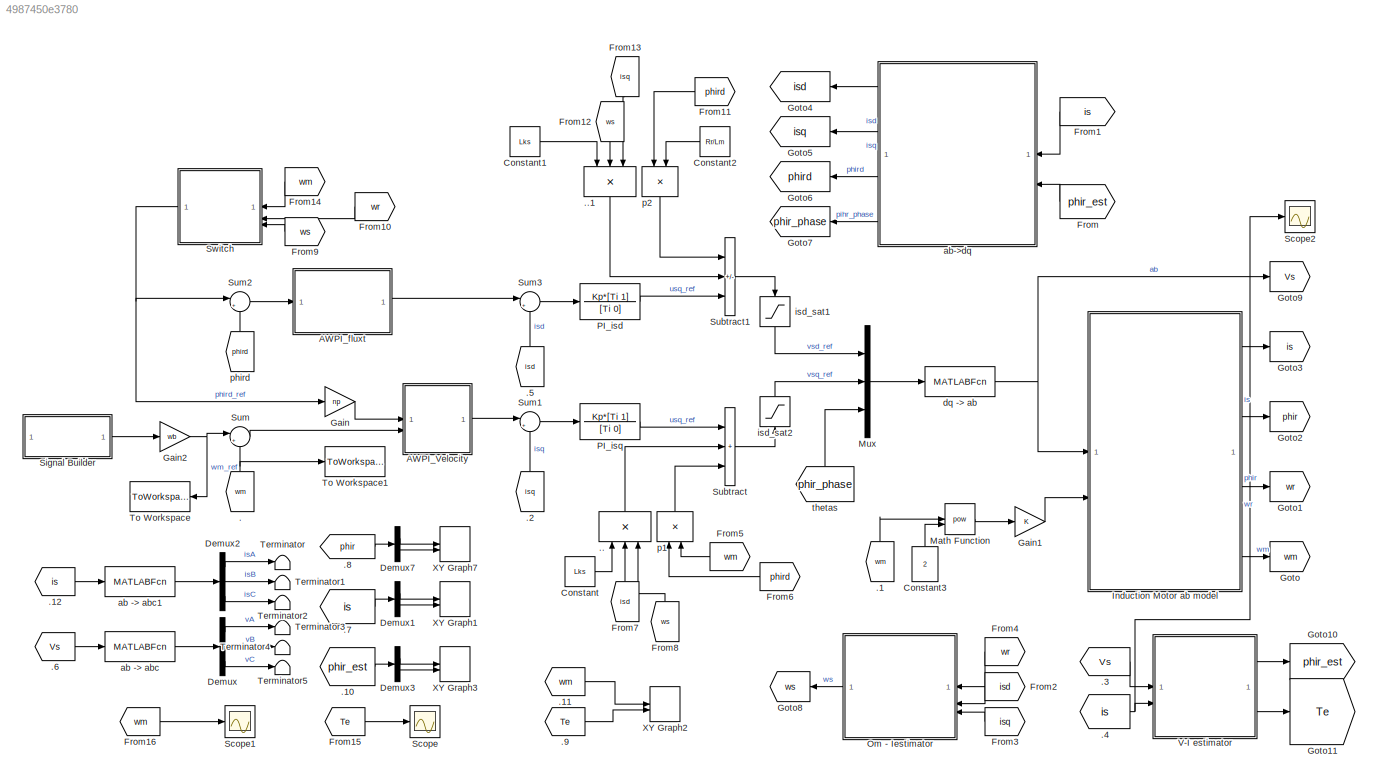
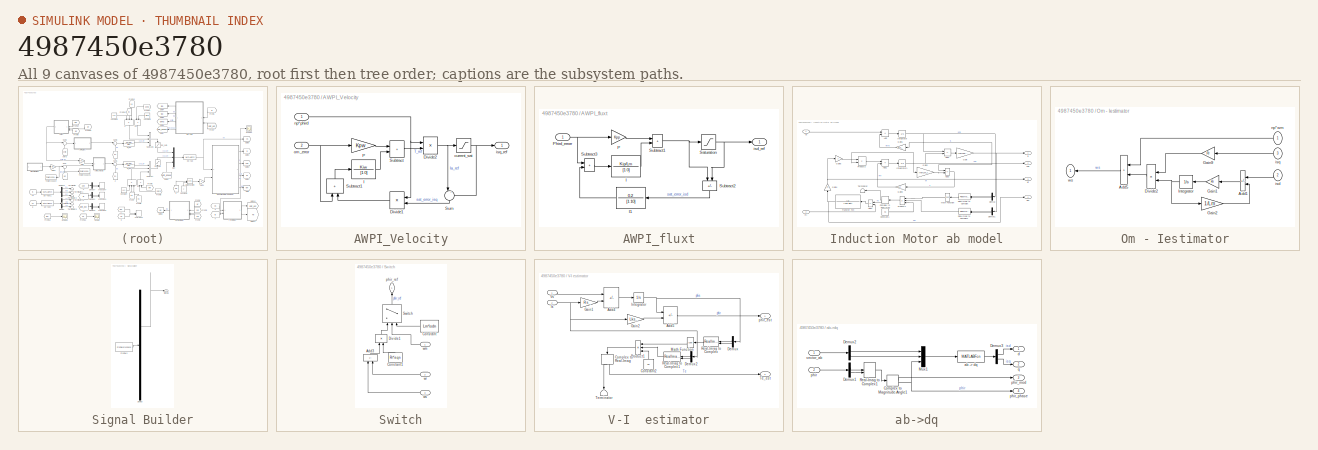
[diagram: thumbnail index - all 9 canvases of the model, root first then tree order]
MODEL slx_4987450e3780
KIND model
CONFIG AbsTol = auto
CONFIG EnableMultiTasking = off
CONFIG FixedStep = auto
CONFIG MaxStep = auto
CONFIG MinStep = auto
CONFIG RelTol = 1e-3
CONFIG SampleTimeConstraint = Unconstrained
CONFIG SolverName = VariableStepAuto
CONFIG StartTime = 0.0
CONFIG StopTime = 55
BLOCK [From] .
  GotoTag = wm
  NameLocation = right
BLOCK [Product] ..
  Inputs = ***
  NameLocation = right
BLOCK [Product] ..1
  Inputs = ***
  NameLocation = left
BLOCK [From] .1
  GotoTag = wm
  NameLocation = right
BLOCK [From] .10
  GotoTag = phir_est
BLOCK [From] .11
  GotoTag = wm
BLOCK [From] .12
  GotoTag = is
BLOCK [From] .2
  GotoTag = isq
  NameLocation = right
BLOCK [From] .3
  GotoTag = Vs
BLOCK [From] .4
  GotoTag = is
BLOCK [From] .5
  GotoTag = isd
  NameLocation = right
BLOCK [From] .6
  GotoTag = Vs
BLOCK [From] .7
  GotoTag = is
BLOCK [From] .8
  GotoTag = phir
BLOCK [From] .9
  GotoTag = Te
BLOCK [SubSystem] AWPI_Velocity
BLOCK [Product] AWPI_Velocity/Divide1
  Inputs = **
  NameLocation = top
BLOCK [Product] AWPI_Velocity/Divide2
  Inputs = /*
BLOCK [TransferFcn] AWPI_Velocity/I
  Denominator = [1 0]
  Numerator = Kiw
BLOCK [Gain] AWPI_Velocity/P
  Gain = Kpw
BLOCK [Sum] AWPI_Velocity/Subtract
  IconShape = rectangular
BLOCK [Sum] AWPI_Velocity/Subtract1
  IconShape = rectangular
  NameLocation = right
BLOCK [Sum] AWPI_Velocity/Sum
  Inputs = |-+
  NameLocation = left
BLOCK [Saturate] AWPI_Velocity/current_sat
  LowerLimit = -isqn
  UpperLimit = isqn
BLOCK [Outport] AWPI_Velocity/isq_ref
BLOCK [Inport] AWPI_Velocity/np*phird
BLOCK [Inport] AWPI_Velocity/om_error
  Port = 2
BLOCK [SubSystem] AWPI_fluxt
BLOCK [TransferFcn] AWPI_fluxt/I
  Denominator = [1 0]
  Numerator = Kip/Lm
BLOCK [TransferFcn] AWPI_fluxt/I1
  Denominator = [1 10]
  NameLocation = top
  Numerator = 0.2
BLOCK [Gain] AWPI_fluxt/P
  Gain = Kpp
BLOCK [Inport] AWPI_fluxt/Phird_errorr
BLOCK [Saturate] AWPI_fluxt/Saturation
  LowerLimit = -isdn
  UpperLimit = isdn
BLOCK [Sum] AWPI_fluxt/Subtract1
  IconShape = rectangular
BLOCK [Sum] AWPI_fluxt/Subtract2
  IconShape = rectangular
  Inputs = -+
  NameLocation = left
BLOCK [Sum] AWPI_fluxt/Subtract3
  IconShape = rectangular
BLOCK [Outport] AWPI_fluxt/isd_ref
BLOCK [Constant] Constant
  Value = Lks
BLOCK [Constant] Constant1
  Value = Lks
BLOCK [Constant] Constant2
  NameLocation = top
  Value = Rr/Lm
BLOCK [Constant] Constant3
  NameLocation = right
  Value = 2
BLOCK [Demux] Demux
  Outputs = 3
BLOCK [Demux] Demux1
  Outputs = 2
BLOCK [Demux] Demux2
  Outputs = 3
BLOCK [Demux] Demux3
  Outputs = 2
BLOCK [Demux] Demux7
  Outputs = 2
BLOCK [From] From
  GotoTag = phir_est
  NameLocation = top
BLOCK [From] From1
  GotoTag = is
  NameLocation = top
BLOCK [From] From10
  GotoTag = wr
  NameLocation = top
BLOCK [From] From11
  GotoTag = phird
  NameLocation = top
BLOCK [From] From12
  GotoTag = ws
  NameLocation = left
BLOCK [From] From13
  GotoTag = isq
  NameLocation = left
BLOCK [From] From14
  GotoTag = wm
  NameLocation = top
BLOCK [From] From15
  GotoTag = Te
BLOCK [From] From16
  GotoTag = wm
BLOCK [From] From2
  GotoTag = isd
  NameLocation = top
BLOCK [From] From3
  GotoTag = isq
  NameLocation = top
BLOCK [From] From4
  GotoTag = wr
  NameLocation = top
BLOCK [From] From5
  GotoTag = wm
  NameLocation = top
BLOCK [From] From6
  GotoTag = phird
  NameLocation = top
BLOCK [From] From7
  GotoTag = isd
  NameLocation = right
BLOCK [From] From8
  GotoTag = ws
  NameLocation = right
BLOCK [From] From9
  GotoTag = ws
  NameLocation = top
BLOCK [Gain] Gain
  Gain = np
BLOCK [Gain] Gain1
  Gain = K
BLOCK [Gain] Gain2
  Gain = wb
BLOCK [Goto] Goto
  GotoTag = wm
BLOCK [Goto] Goto1
  GotoTag = wr
BLOCK [Goto] Goto10
  GotoTag = phir_est
BLOCK [Goto] Goto11
  GotoTag = Te
BLOCK [Goto] Goto2
  GotoTag = phir
BLOCK [Goto] Goto3
  GotoTag = is
BLOCK [Goto] Goto4
  GotoTag = isd
  NameLocation = top
BLOCK [Goto] Goto5
  GotoTag = isq
  NameLocation = top
BLOCK [Goto] Goto6
  GotoTag = phird
  NameLocation = top
BLOCK [Goto] Goto7
  GotoTag = phir_phase
  NameLocation = top
BLOCK [Goto] Goto8
  GotoTag = ws
  NameLocation = top
BLOCK [Goto] Goto9
  GotoTag = Vs
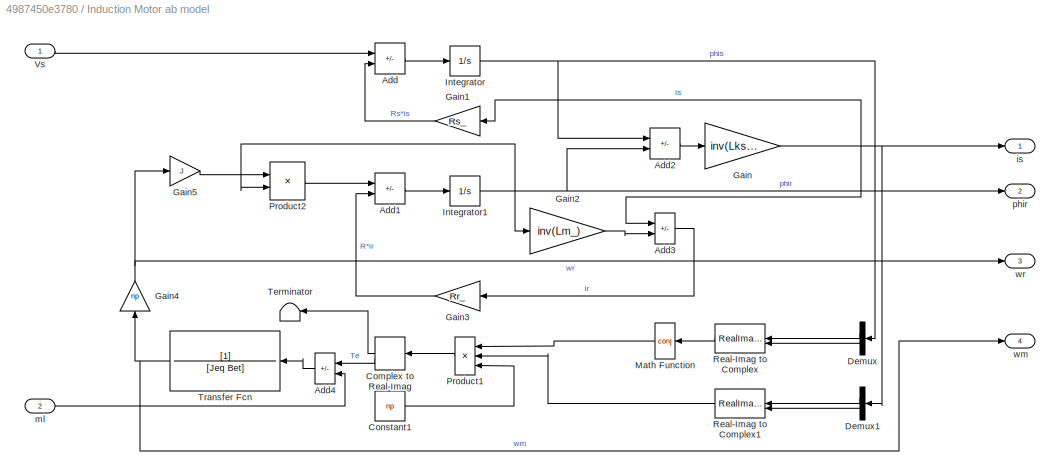
BLOCK [SubSystem] Induction Motor ab model
BLOCK [Sum] Induction Motor ab model/Add
  IconShape = rectangular
  Inputs = +-
BLOCK [Sum] Induction Motor ab model/Add1
  IconShape = rectangular
  InputSameDT = on
  Inputs = +-
BLOCK [Sum] Induction Motor ab model/Add2
  IconShape = rectangular
  Inputs = +-
BLOCK [Sum] Induction Motor ab model/Add3
  IconShape = rectangular
  Inputs = -+
BLOCK [Sum] Induction Motor ab model/Add4
  IconShape = rectangular
  Inputs = +-
  NameLocation = top
BLOCK [ComplexToRealImag] Induction Motor ab model/Complex to Real-Imag
  NameLocation = top
BLOCK [Constant] Induction Motor ab model/Constant1
  Value = np
BLOCK [Demux] Induction Motor ab model/Demux
  NameLocation = top
  Outputs = 2
BLOCK [Demux] Induction Motor ab model/Demux1
  NameLocation = top
  Outputs = 2
BLOCK [Gain] Induction Motor ab model/Gain
  Gain = inv(Lks_)
  Multiplication = Matrix(K*u)
BLOCK [Gain] Induction Motor ab model/Gain1
  Gain = Rs_
  Multiplication = Matrix(K*u)
  NameLocation = top
BLOCK [Gain] Induction Motor ab model/Gain2
  Gain = inv(Lm_)
  Multiplication = Matrix(K*u)
BLOCK [Gain] Induction Motor ab model/Gain3
  Gain = Rr_
  Multiplication = Matrix(K*u)
  NameLocation = top
BLOCK [Gain] Induction Motor ab model/Gain4
  Gain = np
  NameLocation = right
BLOCK [Gain] Induction Motor ab model/Gain5
  Gain = J
BLOCK [Integrator] Induction Motor ab model/Integrator
BLOCK [Integrator] Induction Motor ab model/Integrator1
BLOCK [Math] Induction Motor ab model/Math Function
  NameLocation = top
  Operator = conj
  SignedPower = on
BLOCK [Product] Induction Motor ab model/Product1
  Inputs = 3
  NameLocation = top
BLOCK [Product] Induction Motor ab model/Product2
  Multiplication = Matrix(*)
BLOCK [RealImagToComplex] Induction Motor ab model/Real-Imag to Complex
  NameLocation = top
BLOCK [RealImagToComplex] Induction Motor ab model/Real-Imag to Complex1
  NameLocation = top
BLOCK [Terminator] Induction Motor ab model/Terminator
  NameLocation = top
BLOCK [TransferFcn] Induction Motor ab model/Transfer Fcn
  Denominator = [Jeq Bet]
  NameLocation = top
BLOCK [Inport] Induction Motor ab model/Vs
BLOCK [Outport] Induction Motor ab model/is
BLOCK [Inport] Induction Motor ab model/ml
  Port = 2
BLOCK [Outport] Induction Motor ab model/phir
  Port = 2
BLOCK [Outport] Induction Motor ab model/wm
  Port = 4
BLOCK [Outport] Induction Motor ab model/wr
  Port = 3
BLOCK [Math] Math Function
  Operator = pow
  SignedPower = on
BLOCK [Mux] Mux
  DisplayOption = bar
  Inputs = 3
BLOCK [SubSystem] Om - Iestimator
  NameLocation = top
BLOCK [Sum] Om - Iestimator/Add1
  IconShape = rectangular
  Inputs = +-
  NameLocation = top
BLOCK [Sum] Om - Iestimator/Add5
  IconShape = rectangular
  NameLocation = top
BLOCK [Product] Om - Iestimator/Divide2
  Inputs = */
  NameLocation = top
BLOCK [Gain] Om - Iestimator/Gain1
  Gain = Rr
  NameLocation = top
BLOCK [Gain] Om - Iestimator/Gain2
  Gain = 1/Lm
BLOCK [Gain] Om - Iestimator/Gain9
  Gain = Rr
  NameLocation = top
BLOCK [Integrator] Om - Iestimator/Integrator
  InitialCondition = 1.1
  NameLocation = top
BLOCK [Inport] Om - Iestimator/isd
  Port = 2
BLOCK [Inport] Om - Iestimator/isq
  Port = 3
BLOCK [Inport] Om - Iestimator/np*wm
  NameLocation = top
BLOCK [Outport] Om - Iestimator/ws
  NameLocation = top
BLOCK [TransferFcn] PI_isd
  Denominator = [Ti 0]
  Numerator = Kp*[Ti 1]
BLOCK [TransferFcn] PI_isq
  Denominator = [Ti 0]
  Numerator = Kp*[Ti 1]
BLOCK [Scope] Scope
  Floating = off
  NumInputPorts = 1
  ScopeSpecificationString = Simulink.scopes.TimeScopeBlockCfg('CurrentConfiguration', extmgr.ConfigurationSet(extmgr.Configuration('Core','General UI',true,'FigureColor',[1 1 1]),extmgr.Configuration('Core','Source UI',true),extmgr.Configuration('Sources','WiredSimulink',true),extmgr.Configuration('Visuals','Time Domain',true,'SerializedDisplays',{struct('MinYLimReal','-0.70777','MaxYLimReal','6.36992','YLabelReal','','MinYL...<+1476ch>
BLOCK [Scope] Scope1
  Floating = off
  NumInputPorts = 1
  ScopeSpecificationString = Simulink.scopes.TimeScopeBlockCfg('CurrentConfiguration', extmgr.ConfigurationSet(extmgr.Configuration('Core','General UI',true),extmgr.Configuration('Core','Source UI',true),extmgr.Configuration('Sources','WiredSimulink',true,'DataLoggingVariableName','ScopeData1'),extmgr.Configuration('Visuals','Time Domain',true,'SerializedDisplays',{struct('MinYLimReal','-2.6217','MaxYLimReal','23.59534','YLab...<+1365ch>
BLOCK [Scope] Scope2
  Floating = off
  NumInputPorts = 1
  ScopeSpecificationString = Simulink.scopes.TimeScopeBlockCfg('CurrentConfiguration', extmgr.ConfigurationSet(extmgr.Configuration('Core','General UI',true,'FigureColor',[1 1 1]),extmgr.Configuration('Core','Source UI',true),extmgr.Configuration('Sources','WiredSimulink',true,'DataLoggingVariableName','ScopeData1'),extmgr.Configuration('Visuals','Time Domain',true,'SerializedDisplays',{struct('MinYLimReal','-25.49893','MaxYL...<+1558ch>
BLOCK [SubSystem] Signal Builder
  ClipboardFcn = sigbuilder_block('clipboard');
  CloseFcn = sigbuilder_block('close');
  ContinueFcn = sigbuilder_block('continue');
  CopyFcn = sigbuilder_block('copy');
  DeleteFcn = sigbuilder_block('delete');
  LoadFcn = sigbuilder_block('load');
  MaskHideContents = on
  ModelCloseFcn = sigbuilder_block('modelClose');
  NameChangeFcn = sigbuilder_block('namechange');
  OpenFcn = sigbuilder_block('open',[6 30 1012.5 447.75 ]);
  PauseFcn = sigbuilder_block('pause');
  PreSaveFcn = sigbuilder_block('preSave');
  StartFcn = sigbuilder_block('start');
  StopFcn = sigbuilder_block('stop');
  Tag = STV Subsys
BLOCK [Demux] Signal Builder/Demux
  DisplayOption = none
  Outputs = 1
  Tag = STV Demux
BLOCK [FromWorkspace] Signal Builder/FromWs
  Tag = STV FromWs
  VariableName = tuvar
BLOCK [Outport] Signal Builder/Signal 1
  Tag = STV Outport
BLOCK [Sum] Subtract
  IconShape = rectangular
  Inputs = +++
BLOCK [Sum] Subtract1
  IconShape = rectangular
  Inputs = --+
BLOCK [Sum] Sum
  Inputs = |+-
BLOCK [Sum] Sum1
  Inputs = |+-
BLOCK [Sum] Sum2
  Inputs = |+-
BLOCK [Sum] Sum3
  Inputs = |+-
BLOCK [SubSystem] Switch
  NameLocation = top
BLOCK [Sum] Switch/Add3
  IconShape = rectangular
  Inputs = +-
  NameLocation = right
BLOCK [Constant] Switch/Constant
  NameLocation = top
  Value = Lm*isdn
BLOCK [Constant] Switch/Constant1
  NameLocation = right
  Value = Rr*isqn
BLOCK [Product] Switch/Divide1
  Inputs = /*
  NameLocation = right
BLOCK [Switch] Switch/Switch
  Criteria = u2 > Threshold
  InputSameDT = off
  NameLocation = right
  SaturateOnIntegerOverflow = off
  Threshold = wb
BLOCK [Outport] Switch/phir_ref
  NameLocation = right
BLOCK [Inport] Switch/wm
BLOCK [Inport] Switch/wr
  NameLocation = top
  Port = 2
BLOCK [Inport] Switch/ws
  Port = 3
BLOCK [Terminator] Terminator
BLOCK [Terminator] Terminator1
BLOCK [Terminator] Terminator2
BLOCK [Terminator] Terminator3
BLOCK [Terminator] Terminator4
BLOCK [Terminator] Terminator5
BLOCK [ToWorkspace] To Workspace
  FixptAsFi = on
  MaxDataPoints = inf
  NameLocation = top
  SampleTime = -1
  SaveFormat = Timeseries
  VariableName = wm_ref
BLOCK [ToWorkspace] To Workspace1
  FixptAsFi = on
  MaxDataPoints = inf
  SampleTime = -1
  SaveFormat = Timeseries
  VariableName = wm_controlled
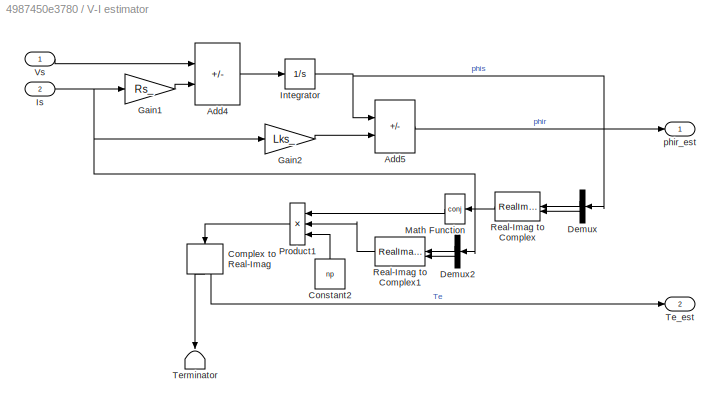
BLOCK [SubSystem] V-I  estimator
BLOCK [Sum] V-I  estimator/Add4
  IconShape = rectangular
  Inputs = +-
BLOCK [Sum] V-I  estimator/Add5
  IconShape = rectangular
  Inputs = +-
BLOCK [ComplexToRealImag] V-I  estimator/Complex to Real-Imag
  NameLocation = left
BLOCK [Constant] V-I  estimator/Constant2
  NameLocation = right
  Value = np
BLOCK [Demux] V-I  estimator/Demux
  NameLocation = top
  Outputs = 2
BLOCK [Demux] V-I  estimator/Demux2
  NameLocation = top
  Outputs = 2
BLOCK [Gain] V-I  estimator/Gain1
  Gain = Rs_
  Multiplication = Matrix(K*u)
BLOCK [Gain] V-I  estimator/Gain2
  Gain = Lks_
  Multiplication = Matrix(K*u)
BLOCK [Integrator] V-I  estimator/Integrator
BLOCK [Inport] V-I  estimator/Is
  Port = 2
BLOCK [Math] V-I  estimator/Math Function
  NameLocation = top
  Operator = conj
  SignedPower = on
BLOCK [Product] V-I  estimator/Product1
  Inputs = 3
  NameLocation = top
BLOCK [RealImagToComplex] V-I  estimator/Real-Imag to Complex
  NameLocation = top
BLOCK [RealImagToComplex] V-I  estimator/Real-Imag to Complex1
  NameLocation = top
BLOCK [Outport] V-I  estimator/Te_est
  Port = 2
BLOCK [Terminator] V-I  estimator/Terminator
  NameLocation = left
BLOCK [Inport] V-I  estimator/Vs
BLOCK [Outport] V-I  estimator/phir_est
BLOCK [Record] XY Graph1
  CompatibilityTag = XY
  FileSettingsInternal = {"entries":[{"content":{"excelSettings":{"content":{},"type":"Streamout.ExcelSettings"}},"type":"Streamout.FileSettingStorage","uuid":"d3ca43fa-2eb8-43c5-9975-2b22932f402f"}],"packageUris":["http://schema.mathworks.com/mf0/streamout_blocks/R2020a"],"version":"1.0"}
  Layout = [1 1]
  SignalsInternal = {"entries":[{"content":{"signals":[{"content":{"blockPath":["IMSpeedControl/XY Graph1"],"channel":[],"dimensions":[1],"domain":"IMSpeedControl/XY Graph1","lineColor":"#a2142f","plots":[1],"port":1,"sid":[""],"signalID":2589,"signalName":"Demux1:1"},"type":"RecordBlkView.Signal","uuid":"02de77b0-35d0-4548-bb27-b905c8801d44"},{"content":{"blockPath":["IMSpeedControl/XY Graph1"],"channel":[],"dimensi...<+393ch>
  VisualizationBindings = {"xyplotplugin":{"info":[{"series":[{"bindingParametersList":[{"parameter":"X-Axis","signalID":2589,"signalName":"Demux1:1"},{"parameter":"Y-Axis","signalID":2593,"signalName":"Demux1:2"}],"seriesID":41022}],"subplotID":1}]}}
  st = -1
BLOCK [Record] XY Graph2
  CompatibilityTag = XY
  FileSettingsInternal = {"entries":[{"content":{"excelSettings":{"content":{},"type":"Streamout.ExcelSettings"}},"type":"Streamout.FileSettingStorage","uuid":"a333dde8-44ef-479c-a614-b682ced7709c"}],"packageUris":["http://schema.mathworks.com/mf0/streamout_blocks/R2020a"],"version":"1.0"}
  Layout = [1 1]
  SignalsInternal = {"entries":[{"content":{"signals":[{"content":{"blockPath":["IMSpeedControl/XY Graph2"],"channel":[],"dimensions":[1],"domain":"IMSpeedControl/XY Graph2","lineColor":"#a2142f","plots":[1],"port":1,"sid":[""],"signalID":2597,"signalName":".11"},"type":"RecordBlkView.Signal","uuid":"f7e30db1-32b0-4ca4-8bfd-82b278195b5f"},{"content":{"blockPath":["IMSpeedControl/XY Graph2"],"channel":[],"dimensions":...<+382ch>
  VisualizationBindings = {"xyplotplugin":{"info":[{"series":[{"bindingParametersList":[{"parameter":"X-Axis","signalID":2597,"signalName":".11"},{"parameter":"Y-Axis","signalID":2601,"signalName":".9"}],"seriesID":14013}],"subplotID":1}]}}
  st = -1
BLOCK [Record] XY Graph3
  CompatibilityTag = XY
  FileSettingsInternal = {"entries":[{"content":{"excelSettings":{"content":{},"type":"Streamout.ExcelSettings"}},"type":"Streamout.FileSettingStorage","uuid":"8872b38d-c9ea-4a8e-ae80-a4eae1dd000b"}],"packageUris":["http://schema.mathworks.com/mf0/streamout_blocks/R2020a"],"version":"1.0"}
  Layout = [1 1]
  SignalsInternal = {"entries":[{"content":{"signals":[{"content":{"blockPath":["IMSpeedControl/XY Graph3"],"channel":[],"dimensions":[1],"domain":"IMSpeedControl/XY Graph3","lineColor":"#a2142f","plots":[1],"port":1,"sid":[""],"signalID":2605,"signalName":"Demux3:1"},"type":"RecordBlkView.Signal","uuid":"8f683524-bb5c-486f-9abb-78ec64469034"},{"content":{"blockPath":["IMSpeedControl/XY Graph3"],"channel":[],"dimensi...<+393ch>
  VisualizationBindings = {"xyplotplugin":{"info":[{"series":[{"bindingParametersList":[{"parameter":"X-Axis","signalID":2605,"signalName":"Demux3:1"},{"parameter":"Y-Axis","signalID":2609,"signalName":"Demux3:2"}],"seriesID":20617}],"subplotID":1}]}}
  st = -1
BLOCK [Record] XY Graph7
  CompatibilityTag = XY
  FileSettingsInternal = {"entries":[{"content":{"excelSettings":{"content":{},"type":"Streamout.ExcelSettings"}},"type":"Streamout.FileSettingStorage","uuid":"0bf42496-7210-4f3b-99f3-3b3a1dd7ec81"}],"packageUris":["http://schema.mathworks.com/mf0/streamout_blocks/R2020a"],"version":"1.0"}
  Layout = [1 1]
  SignalsInternal = {"entries":[{"content":{"signals":[{"content":{"blockPath":["IMSpeedControl/XY Graph7"],"channel":[],"dimensions":[1],"domain":"IMSpeedControl/XY Graph7","lineColor":"#a2142f","plots":[1],"port":1,"sid":[""],"signalID":2613,"signalName":"Demux7:1"},"type":"RecordBlkView.Signal","uuid":"cdc689f2-e2ee-4a3d-8cbf-3711711c7aba"},{"content":{"blockPath":["IMSpeedControl/XY Graph7"],"channel":[],"dimensi...<+393ch>
  VisualizationBindings = {"xyplotplugin":{"info":[{"series":[{"bindingParametersList":[{"parameter":"X-Axis","signalID":2613,"signalName":"Demux7:1"},{"parameter":"Y-Axis","signalID":2617,"signalName":"Demux7:2"}],"seriesID":21423}],"subplotID":1}]}}
  st = -1
BLOCK [MATLABFcn] ab -> abc
  MATLABFcn = Inv_Clarke(u)
  OutputSignalType = real
BLOCK [MATLABFcn] ab -> abc1
  MATLABFcn = Inv_Clarke(u)
  OutputSignalType = real
BLOCK [SubSystem] ab->dq
  NameLocation = top
BLOCK [ComplexToMagnitudeAngle] ab->dq/Complex to Magnitude-Angle1
BLOCK [Demux] ab->dq/Demux1
  Outputs = 2
BLOCK [Demux] ab->dq/Demux2
  Outputs = 2
BLOCK [Demux] ab->dq/Demux3
  Outputs = 2
BLOCK [Mux] ab->dq/Mux1
  DisplayOption = bar
  Inputs = 3
BLOCK [RealImagToComplex] ab->dq/Real-Imag to Complex1
BLOCK [MATLABFcn] ab->dq/ab -> dq
  MATLABFcn = Park(u)
  OutputDimensions = 2
BLOCK [Outport] ab->dq/d
BLOCK [Inport] ab->dq/phir
  Port = 2
BLOCK [Outport] ab->dq/phir_mod
  Port = 3
BLOCK [Outport] ab->dq/phir_phase
  Port = 4
BLOCK [Outport] ab->dq/q
  Port = 2
BLOCK [Inport] ab->dq/vector_ab
BLOCK [MATLABFcn] dq -> ab
  MATLABFcn = Inv_Park(u)
  OutputDimensions = 2
  OutputSignalType = real
BLOCK [Saturate] isd_sat1
  LowerLimit = -380
  NameLocation = left
  UpperLimit = 380
BLOCK [Saturate] isd_sat2
  LowerLimit = -380
  NameLocation = right
  UpperLimit = 380
BLOCK [Product] p1
  Inputs = **
  NameLocation = right
BLOCK [Product] p2
  Inputs = **
  NameLocation = left
BLOCK [From] phird
  GotoTag = phird
  NameLocation = right
BLOCK [From] thetas
  GotoTag = phir_phase
  NameLocation = right
LINE ..1:1 -> Subtract1:2
LINE ..:1 -> Subtract:2
LINE .10:1 -> Demux3:1
LINE .11:1 -> XY Graph2:1
LINE .12:1 -> ab -> abc1:1
LINE .1:1 -> Math Function:1
LINE .2:1 -> Sum1:2
LINE .3:1 -> V-I  estimator:1
NET .4:1 -> Scope2:1, V-I  estimator:2
LINE .5:1 -> Sum3:2
LINE .6:1 -> ab -> abc:1
LINE .7:1 -> Demux1:1
LINE .8:1 -> Demux7:1
LINE .9:1 -> XY Graph2:2
NET .:1 -> Sum:2, To Workspace1:1
LINE AWPI_Velocity/Divide1:1 -> AWPI_Velocity/Subtract1:2
NET AWPI_Velocity/Divide2:1 -> AWPI_Velocity/Sum:1, AWPI_Velocity/current_sat:1
LINE AWPI_Velocity/I:1 -> AWPI_Velocity/Subtract:2
LINE AWPI_Velocity/P:1 -> AWPI_Velocity/Subtract:1
LINE AWPI_Velocity/Subtract1:1 -> AWPI_Velocity/I:1
LINE AWPI_Velocity/Subtract:1 -> AWPI_Velocity/Divide2:2
LINE AWPI_Velocity/Sum:1 -> AWPI_Velocity/Divide1:2
NET AWPI_Velocity/current_sat:1 -> AWPI_Velocity/Sum:2, AWPI_Velocity/isq_ref:1
NET AWPI_Velocity/np*phird:1 -> AWPI_Velocity/Divide1:1, AWPI_Velocity/Divide2:1
NET AWPI_Velocity/om_error:1 -> AWPI_Velocity/P:1, AWPI_Velocity/Subtract1:1
LINE AWPI_Velocity:1 -> Sum1:1
LINE AWPI_fluxt/I1:1 -> AWPI_fluxt/Subtract3:2
LINE AWPI_fluxt/I:1 -> AWPI_fluxt/Subtract1:2
LINE AWPI_fluxt/P:1 -> AWPI_fluxt/Subtract1:1
NET AWPI_fluxt/Phird_errorr:1 -> AWPI_fluxt/P:1, AWPI_fluxt/Subtract3:1
NET AWPI_fluxt/Saturation:1 -> AWPI_fluxt/Subtract2:2, AWPI_fluxt/isd_ref:1
NET AWPI_fluxt/Subtract1:1 -> AWPI_fluxt/Saturation:1, AWPI_fluxt/Subtract2:1
LINE AWPI_fluxt/Subtract2:1 -> AWPI_fluxt/I1:1
LINE AWPI_fluxt/Subtract3:1 -> AWPI_fluxt/I:1
LINE AWPI_fluxt:1 -> Sum3:1
LINE Constant1:1 -> ..1:1
LINE Constant2:1 -> p2:2
LINE Constant3:1 -> Math Function:2
LINE Constant:1 -> ..:1
LINE Demux1:1 -> XY Graph1:1
LINE Demux1:2 -> XY Graph1:2
LINE Demux2:1 -> Terminator:1
LINE Demux2:2 -> Terminator1:1
LINE Demux2:3 -> Terminator2:1
LINE Demux3:1 -> XY Graph3:1
LINE Demux3:2 -> XY Graph3:2
LINE Demux7:1 -> XY Graph7:1
LINE Demux7:2 -> XY Graph7:2
LINE Demux:1 -> Terminator3:1
LINE Demux:2 -> Terminator4:1
LINE Demux:3 -> Terminator5:1
LINE From10:1 -> Switch:2
LINE From11:1 -> p2:1
LINE From12:1 -> ..1:2
LINE From13:1 -> ..1:3
LINE From14:1 -> Switch:1
LINE From15:1 -> Scope:1
LINE From16:1 -> Scope1:1
LINE From1:1 -> ab->dq:1
LINE From2:1 -> Om - Iestimator:2
LINE From3:1 -> Om - Iestimator:3
LINE From4:1 -> Om - Iestimator:1
LINE From5:1 -> p1:2
LINE From6:1 -> p1:1
LINE From7:1 -> ..:2
LINE From8:1 -> ..:3
LINE From9:1 -> Switch:3
LINE From:1 -> ab->dq:2
LINE Gain1:1 -> Induction Motor ab model:2
NET Gain2:1 -> Sum:1, To Workspace:1
LINE Gain:1 -> AWPI_Velocity:1
LINE Induction Motor ab model/Add1:1 -> Induction Motor ab model/Integrator1:1
LINE Induction Motor ab model/Add2:1 -> Induction Motor ab model/Gain:1
LINE Induction Motor ab model/Add3:1 -> Induction Motor ab model/Gain3:1
LINE Induction Motor ab model/Add4:1 -> Induction Motor ab model/Transfer Fcn:1
LINE Induction Motor ab model/Add:1 -> Induction Motor ab model/Integrator:1
LINE Induction Motor ab model/Complex to Real-Imag:1 -> Induction Motor ab model/Terminator:1
LINE Induction Motor ab model/Complex to Real-Imag:2 -> Induction Motor ab model/Add4:1
LINE Induction Motor ab model/Constant1:1 -> Induction Motor ab model/Product1:3
LINE Induction Motor ab model/Demux1:1 -> Induction Motor ab model/Real-Imag to Complex1:1
LINE Induction Motor ab model/Demux1:2 -> Induction Motor ab model/Real-Imag to Complex1:2
LINE Induction Motor ab model/Demux:1 -> Induction Motor ab model/Real-Imag to Complex:1
LINE Induction Motor ab model/Demux:2 -> Induction Motor ab model/Real-Imag to Complex:2
LINE Induction Motor ab model/Gain1:1 -> Induction Motor ab model/Add:2
LINE Induction Motor ab model/Gain2:1 -> Induction Motor ab model/Add3:2
LINE Induction Motor ab model/Gain3:1 -> Induction Motor ab model/Add1:2
NET Induction Motor ab model/Gain4:1 -> Induction Motor ab model/Gain5:1, Induction Motor ab model/wr:1
LINE Induction Motor ab model/Gain5:1 -> Induction Motor ab model/Product2:1
NET Induction Motor ab model/Gain:1 -> Induction Motor ab model/Add3:1, Induction Motor ab model/Demux1:1, Induction Motor ab model/Gain1:1, Induction Motor ab model/is:1
NET Induction Motor ab model/Integrator1:1 -> Induction Motor ab model/Add2:2, Induction Motor ab model/Gain2:1, Induction Motor ab model/Product2:2, Induction Motor ab model/phir:1
NET Induction Motor ab model/Integrator:1 -> Induction Motor ab model/Add2:1, Induction Motor ab model/Demux:1
LINE Induction Motor ab model/Math Function:1 -> Induction Motor ab model/Product1:1
LINE Induction Motor ab model/Product1:1 -> Induction Motor ab model/Complex to Real-Imag:1
LINE Induction Motor ab model/Product2:1 -> Induction Motor ab model/Add1:1
LINE Induction Motor ab model/Real-Imag to Complex1:1 -> Induction Motor ab model/Product1:2
LINE Induction Motor ab model/Real-Imag to Complex:1 -> Induction Motor ab model/Math Function:1
NET Induction Motor ab model/Transfer Fcn:1 -> Induction Motor ab model/Gain4:1, Induction Motor ab model/wm:1
LINE Induction Motor ab model/Vs:1 -> Induction Motor ab model/Add:1
LINE Induction Motor ab model/ml:1 -> Induction Motor ab model/Add4:2
LINE Induction Motor ab model:1 -> Goto3:1
LINE Induction Motor ab model:2 -> Goto2:1
LINE Induction Motor ab model:3 -> Goto1:1
LINE Induction Motor ab model:4 -> Goto:1
LINE Math Function:1 -> Gain1:1
LINE Mux:1 -> dq -> ab:1
LINE Om - Iestimator/Add1:1 -> Om - Iestimator/Gain1:1
LINE Om - Iestimator/Add5:1 -> Om - Iestimator/ws:1
LINE Om - Iestimator/Divide2:1 -> Om - Iestimator/Add5:2
LINE Om - Iestimator/Gain1:1 -> Om - Iestimator/Integrator:1
LINE Om - Iestimator/Gain2:1 -> Om - Iestimator/Add1:2
LINE Om - Iestimator/Gain9:1 -> Om - Iestimator/Divide2:1
NET Om - Iestimator/Integrator:1 -> Om - Iestimator/Divide2:2, Om - Iestimator/Gain2:1
LINE Om - Iestimator/isd:1 -> Om - Iestimator/Add1:1
LINE Om - Iestimator/isq:1 -> Om - Iestimator/Gain9:1
LINE Om - Iestimator/np*wm:1 -> Om - Iestimator/Add5:1
LINE Om - Iestimator:1 -> Goto8:1
LINE PI_isd:1 -> Subtract1:3
LINE PI_isq:1 -> Subtract:1
LINE Signal Builder:1 -> Gain2:1
LINE Subtract1:1 -> isd_sat1:1
LINE Subtract:1 -> isd_sat2:1
LINE Sum1:1 -> PI_isq:1
LINE Sum2:1 -> AWPI_fluxt:1
LINE Sum3:1 -> PI_isd:1
LINE Sum:1 -> AWPI_Velocity:2
LINE Switch/Add3:1 -> Switch/Divide1:1
LINE Switch/Constant1:1 -> Switch/Divide1:2
LINE Switch/Constant:1 -> Switch/Switch:3
LINE Switch/Divide1:1 -> Switch/Switch:1
LINE Switch/Switch:1 -> Switch/phir_ref:1
LINE Switch/wm:1 -> Switch/Switch:2
LINE Switch/wr:1 -> Switch/Add3:2
LINE Switch/ws:1 -> Switch/Add3:1
NET Switch:1 -> Gain:1, Sum2:1
LINE V-I  estimator/Add4:1 -> V-I  estimator/Integrator:1
LINE V-I  estimator/Add5:1 -> V-I  estimator/phir_est:1
LINE V-I  estimator/Complex to Real-Imag:1 -> V-I  estimator/Terminator:1
LINE V-I  estimator/Complex to Real-Imag:2 -> V-I  estimator/Te_est:1
LINE V-I  estimator/Constant2:1 -> V-I  estimator/Product1:3
LINE V-I  estimator/Demux2:1 -> V-I  estimator/Real-Imag to Complex1:1
LINE V-I  estimator/Demux2:2 -> V-I  estimator/Real-Imag to Complex1:2
LINE V-I  estimator/Demux:1 -> V-I  estimator/Real-Imag to Complex:1
LINE V-I  estimator/Demux:2 -> V-I  estimator/Real-Imag to Complex:2
LINE V-I  estimator/Gain1:1 -> V-I  estimator/Add4:2
LINE V-I  estimator/Gain2:1 -> V-I  estimator/Add5:2
NET V-I  estimator/Integrator:1 -> V-I  estimator/Add5:1, V-I  estimator/Demux:1
NET V-I  estimator/Is:1 -> V-I  estimator/Demux2:1, V-I  estimator/Gain1:1, V-I  estimator/Gain2:1
LINE V-I  estimator/Math Function:1 -> V-I  estimator/Product1:1
LINE V-I  estimator/Product1:1 -> V-I  estimator/Complex to Real-Imag:1
LINE V-I  estimator/Real-Imag to Complex1:1 -> V-I  estimator/Product1:2
LINE V-I  estimator/Real-Imag to Complex:1 -> V-I  estimator/Math Function:1
LINE V-I  estimator/Vs:1 -> V-I  estimator/Add4:1
LINE V-I  estimator:1 -> Goto10:1
LINE V-I  estimator:2 -> Goto11:1
LINE ab -> abc1:1 -> Demux2:1
LINE ab -> abc:1 -> Demux:1
LINE ab->dq/Complex to Magnitude-Angle1:1 -> ab->dq/phir_mod:1
NET ab->dq/Complex to Magnitude-Angle1:2 -> ab->dq/Mux1:3, ab->dq/phir_phase:1
LINE ab->dq/Demux1:1 -> ab->dq/Real-Imag to Complex1:1
LINE ab->dq/Demux1:2 -> ab->dq/Real-Imag to Complex1:2
LINE ab->dq/Demux2:1 -> ab->dq/Mux1:1
LINE ab->dq/Demux2:2 -> ab->dq/Mux1:2
LINE ab->dq/Demux3:1 -> ab->dq/d:1
LINE ab->dq/Demux3:2 -> ab->dq/q:1
LINE ab->dq/Mux1:1 -> ab->dq/ab -> dq:1
LINE ab->dq/Real-Imag to Complex1:1 -> ab->dq/Complex to Magnitude-Angle1:1
LINE ab->dq/ab -> dq:1 -> ab->dq/Demux3:1
LINE ab->dq/phir:1 -> ab->dq/Demux1:1
LINE ab->dq/vector_ab:1 -> ab->dq/Demux2:1
LINE ab->dq:1 -> Goto4:1
LINE ab->dq:2 -> Goto5:1
LINE ab->dq:3 -> Goto6:1
LINE ab->dq:4 -> Goto7:1
NET dq -> ab:1 -> Goto9:1, Induction Motor ab model:1
LINE isd_sat1:1 -> Mux:1
LINE isd_sat2:1 -> Mux:2
LINE p1:1 -> Subtract:3
LINE p2:1 -> Subtract1:1
LINE phird:1 -> Sum2:2
LINE thetas:1 -> Mux:3
note: NET lines group one-source signal fan-out (src -> all destinations, sorted); 1:1 wires keep LINE
